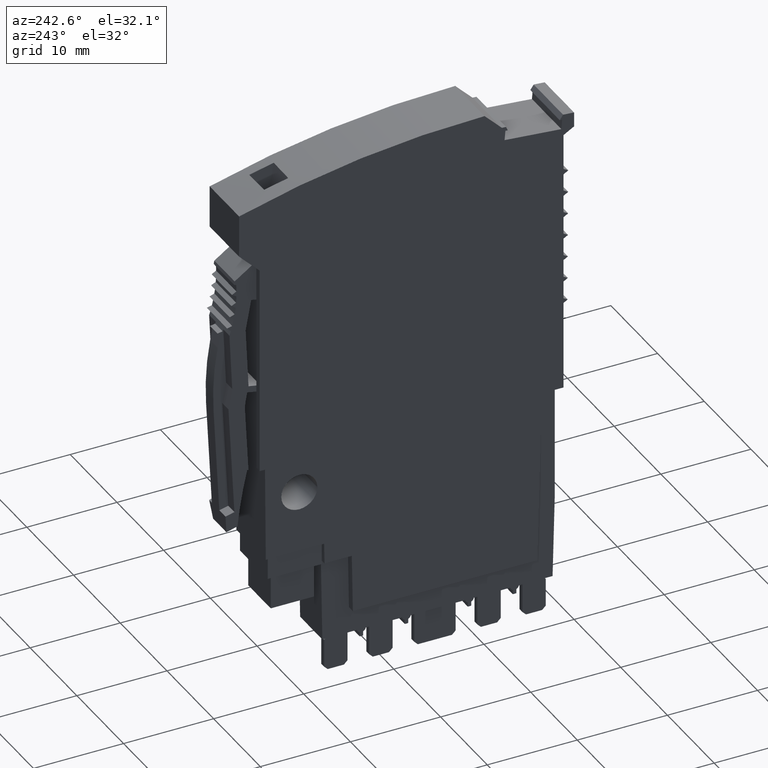
[diagram: clean part render]
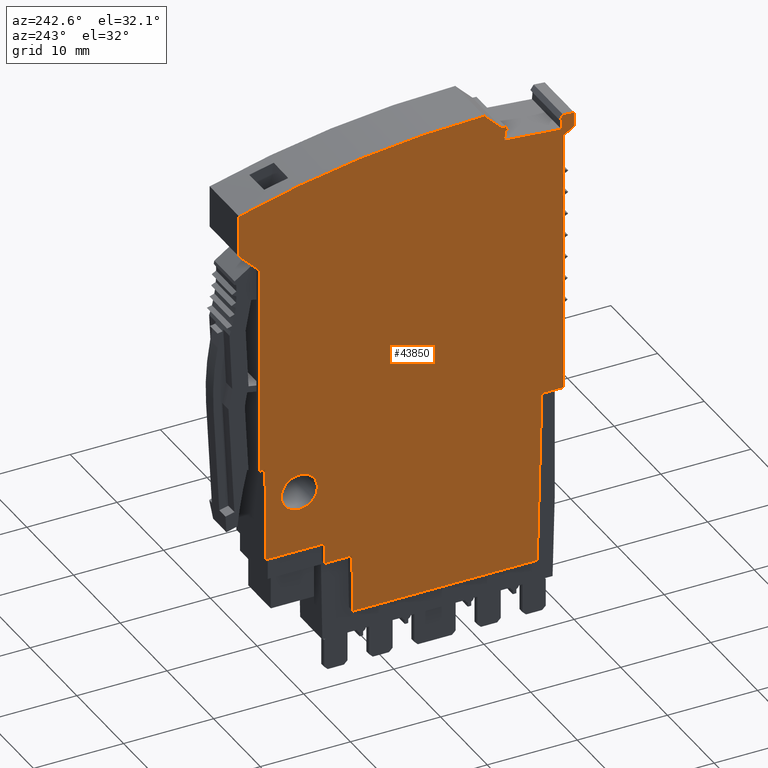
[diagram: same view with one face highlighted and labeled with its STEP entity id]
A machine part, auxiliary view. The second image highlights one B-rep face of the part: STEP entity #43850.
In plain terms, the highlighted planar face has unit normal (-1, -0, -0).
Its self-contained STEP definition (entity closure, byte-faithful):
#1250=CARTESIAN_POINT('',(-29.8115513123655,58.3109668611338,
6.43475243119942E-8));
#1260=VERTEX_POINT('',#1250);
#1290=CARTESIAN_POINT('',(7.105427357601E-15,58.3109707920224,
6.43475288192308E-8));
#1300=DIRECTION('',(-0.999999999999991,-1.31857899599019E-7,
-1.49766621791332E-16));
#1310=VECTOR('',#1300,1.);
#1320=LINE('',#1290,#1310);
#1330=CARTESIAN_POINT('',(-32.2143310897266,58.3109665443083,
6.43475239948271E-8));
#1340=VERTEX_POINT('',#1330);
#1350=EDGE_CURVE('',#1260,#1340,#1320,.T.);
#5100=CARTESIAN_POINT('',(7.105427357601E-15,91.1521046578122,
1.00588494603149E-7));
#5110=DIRECTION('',(0.99638774568797,0.0849203170204037,
9.3711573223576E-11));
#5120=VECTOR('',#5110,1.);
#5130=LINE('',#5100,#5120);
#5140=CARTESIAN_POINT('',(-31.9800707902202,88.4265013356182,
9.75807270378227E-8));
#5150=VERTEX_POINT('',#5140);
#5160=CARTESIAN_POINT('',(-25.6779182987438,88.9636223407723,
9.81734527352729E-8));
#5170=VERTEX_POINT('',#5160);
#5180=EDGE_CURVE('',#5150,#5170,#5130,.T.);
#10710=CARTESIAN_POINT('',(3.78649011320283,88.5895615312616,
9.77606678426478E-8));
#10720=VERTEX_POINT('',#10710);
#10880=CARTESIAN_POINT('',(-23.4620154295483,92.4008095002112,
1.01966469749358E-7));
#10890=VERTEX_POINT('',#10880);
#10920=CARTESIAN_POINT('',(-23.5582147547322,-7.59914422822727,
-8.38583771173296E-9));
#10930=DIRECTION('',(4.25831752161686E-18,1.10352358519E-9,-1.));
#10940=DIRECTION('',(1.,0.,4.25831752161686E-18));
#10950=AXIS2_PLACEMENT_3D('',#10920,#10930,#10940);
#10960=CIRCLE('',#10950,100.);
#10970=EDGE_CURVE('',#10890,#10720,#10960,.T.);
#12600=CARTESIAN_POINT('',(7.105427357601E-15,69.0631084573226,
7.62127663270218E-8));
#12610=DIRECTION('',(-0.866025254858396,0.500000257947384,
5.51762108225162E-10));
#12620=VECTOR('',#12610,1.);
#12630=LINE('',#12600,#12620);
#12640=CARTESIAN_POINT('',(-32.2143223474418,87.6620689298492,
9.67371577285985E-8));
#12650=VERTEX_POINT('',#12640);
#12660=CARTESIAN_POINT('',(-33.3900136670533,88.3408550966202,
9.74862156045238E-8));
#12670=VERTEX_POINT('',#12660);
#12680=EDGE_CURVE('',#12650,#12670,#12630,.T.);
#13910=CARTESIAN_POINT('',(-32.0709798358291,89.4931560796784,
9.87578057050994E-8));
#13920=VERTEX_POINT('',#13910);
#13950=CARTESIAN_POINT('',(-24.443640761928,-7.105427357601E-15,
-2.83106871279415E-15));
#13960=DIRECTION('',(0.0849203170203965,-0.99638774568797,
-1.09953738475221E-9));
#13970=VECTOR('',#13960,1.);
#13980=LINE('',#13950,#13970);
#13990=EDGE_CURVE('',#13920,#5150,#13980,.T.);
#14600=CARTESIAN_POINT('',(-5.69398692253148,45.4986344994977,
5.02088135150241E-8));
#14610=VERTEX_POINT('',#14600);
#14760=CARTESIAN_POINT('',(-5.65384003677915,47.798634957508,
5.27469182549744E-8));
#14770=VERTEX_POINT('',#14760);
#14800=CARTESIAN_POINT('',(-5.65383997885012,47.798634957508,
5.27469182637352E-8));
#14810=DIRECTION('',(-0.0174525057061626,-0.999847693423642,
-1.10335551136512E-9));
#14820=VECTOR('',#14810,1.);
#14830=LINE('',#14800,#14820);
#14840=EDGE_CURVE('',#14770,#14610,#14830,.T.);
#15780=CARTESIAN_POINT('',(-33.3900399795549,-7.105427357601E-15,
-2.86576318231369E-15));
#15790=DIRECTION('',(2.97852014774502E-7,0.999999999999956,
1.10352358518997E-9));
#15800=VECTOR('',#15790,1.);
#15810=LINE('',#15780,#15800);
#15820=CARTESIAN_POINT('',(-33.3900131857319,89.956829913696,
9.92694805916394E-8));
#15830=VERTEX_POINT('',#15820);
#15840=EDGE_CURVE('',#12670,#15830,#15810,.T.);
#17550=CARTESIAN_POINT('',(-6.59696852790766,-259.016138606738,
-2.85830420651556E-7));
#17560=DIRECTION('',(4.25831752161686E-18,1.10352358519E-9,-1.));
#17570=DIRECTION('',(1.,0.,4.25831752161686E-18));
#17580=AXIS2_PLACEMENT_3D('',#17550,#17560,#17570);
#17590=CIRCLE('',#17580,350.);
#17600=CARTESIAN_POINT('',(-32.1707224971671,90.0483011574978,
9.9370422953738E-8));
#17610=VERTEX_POINT('',#17600);
#17620=EDGE_CURVE('',#15830,#17610,#17590,.T.);
#19580=CARTESIAN_POINT('',(-2.89964321690514,54.6030367051887,
6.02557360881995E-8));
#19590=DIRECTION('',(-4.25831525547475E-18,-1.10352358519E-9,1.));
#19600=DIRECTION('',(-1.,-3.5527136788005E-15,-4.25831917597809E-18));
#19610=AXIS2_PLACEMENT_3D('',#19580,#19590,#19600);
#19620=CIRCLE('',#19610,2.);
#19630=CARTESIAN_POINT('',(-2.89964341547315,52.6030367051887,
5.80486889195792E-8));
#19640=VERTEX_POINT('',#19630);
#19650=CARTESIAN_POINT('',(-0.89964321690515,54.6030367051887,
6.02557360967161E-8));
#19660=VERTEX_POINT('',#19650);
#19670=EDGE_CURVE('',#19640,#19660,#19620,.T.);
#19900=CARTESIAN_POINT('',(-4.89964321690515,54.6030367051887,
6.02557360796828E-8));
#19910=VERTEX_POINT('',#19900);
#19940=EDGE_CURVE('',#19910,#19640,#19620,.T.);
#26380=CARTESIAN_POINT('',(-26.0398510780883,90.0071782426212,
9.93250416559252E-8));
#26390=VERTEX_POINT('',#26380);
#26440=CARTESIAN_POINT('',(-68.2570120786558,-7.105427357601E-15,
-3.01841884819964E-15));
#26450=DIRECTION('',(0.424650721006602,0.905357258295626,
9.99083094033182E-10));
#26460=VECTOR('',#26450,1.);
#26470=LINE('',#26440,#26460);
#26480=CARTESIAN_POINT('',(-25.829789102938,90.455031323957,
9.98192580953239E-8));
#26490=VERTEX_POINT('',#26480);
#26500=EDGE_CURVE('',#26390,#26490,#26470,.T.);
#26880=CARTESIAN_POINT('',(7.105427357601E-15,45.4986339341759,
5.02088129128442E-8));
#26890=DIRECTION('',(-0.999999999999995,9.92840029634401E-8,
1.05303923478598E-16));
#26900=VECTOR('',#26890,1.);
#26910=LINE('',#26880,#26900);
#26920=CARTESIAN_POINT('',(-8.72394622879454,45.4986348003242,
5.02088138340907E-8));
#26930=VERTEX_POINT('',#26920);
#26940=EDGE_CURVE('',#14610,#26930,#26910,.T.);
#28860=CARTESIAN_POINT('',(-25.3835324039076,90.4793048796299,
9.98460440733129E-8));
#28870=VERTEX_POINT('',#28860);
#28900=CARTESIAN_POINT('',(7.105427357601E-15,115.862674088246,
1.27857190772296E-7));
#28910=DIRECTION('',(0.707109054248481,0.707104508117308,
7.80306486092286E-10));
#28920=VECTOR('',#28910,1.);
#28930=LINE('',#28900,#28920);
#28940=EDGE_CURVE('',#28870,#10890,#28930,.T.);
#29360=CARTESIAN_POINT('',(0.91543323909314,58.3109681535331,
6.43475259232239E-8));
#29370=VERTEX_POINT('',#29360);
#29520=CARTESIAN_POINT('',(1.50276141855806,58.3109681826893,
6.43475259463959E-8));
#29530=VERTEX_POINT('',#29520);
#29560=CARTESIAN_POINT('',(1.50276141855805,58.3109681826892,
6.43475259465287E-8));
#29570=DIRECTION('',(-0.999999999999999,-4.96421852708345E-8,
-5.90396489026492E-17));
#29580=VECTOR('',#29570,1.);
#29590=LINE('',#29560,#29580);
#29600=EDGE_CURVE('',#29530,#29370,#29590,.T.);
#31520=CARTESIAN_POINT('',(-28.2846249075164,-7.105427357601E-15,
-2.84494650060196E-15));
#31530=DIRECTION('',(0.0261769483078733,-0.999657324975557,
-1.10314543437517E-9));
#31540=VECTOR('',#31530,1.);
#31550=LINE('',#31520,#31540);
#31560=CARTESIAN_POINT('',(-29.3070028735518,39.0430393421184,
4.3084911901866E-8));
#31570=VERTEX_POINT('',#31560);
#31580=EDGE_CURVE('',#1260,#31570,#31550,.T.);
#32450=CARTESIAN_POINT('',(-6.59696852790766,-259.016138606738,
-2.85830420651556E-7));
#32460=DIRECTION('',(-4.25831752161686E-18,-1.10352358519E-9,1.));
#32470=DIRECTION('',(1.,0.,4.25831752161686E-18));
#32480=AXIS2_PLACEMENT_3D('',#32450,#32460,#32470);
#32490=CIRCLE('',#32480,350.);
#32500=EDGE_CURVE('',#28870,#26490,#32490,.T.);
#32760=CARTESIAN_POINT('',(-18.0957104231878,-7.105427357601E-15,
-2.80331313717852E-15));
#32770=DIRECTION('',(-0.0849203170204144,0.996387745687969,
1.09953738475221E-9));
#32780=VECTOR('',#32770,1.);
#32790=LINE('',#32760,#32780);
#32800=CARTESIAN_POINT('',(-25.7688273458872,90.0302771028372,
9.93505320300988E-8));
#32810=VERTEX_POINT('',#32800);
#32820=EDGE_CURVE('',#5170,#32810,#32790,.T.);
#34350=CARTESIAN_POINT('',(-8.83662906666783,39.0430393421184,
4.30849119726467E-8));
#34360=VERTEX_POINT('',#34350);
#34390=CARTESIAN_POINT('',(7.105427357601E-15,39.0430393421184,
4.30849120269805E-8));
#34400=DIRECTION('',(1.,0.,4.25831746991807E-18));
#34410=VECTOR('',#34400,1.);
#34420=LINE('',#34390,#34410);
#34430=EDGE_CURVE('',#31570,#34360,#34420,.T.);
#35650=CARTESIAN_POINT('',(-31.7999560166451,89.5162549473078,
9.87832958504636E-8));
#35660=VERTEX_POINT('',#35650);
#35690=CARTESIAN_POINT('',(7.105427357601E-15,92.2265074146378,
1.01774123385801E-7));
#35700=DIRECTION('',(-0.99638774568797,-0.0849203170203965,
-9.37115732235761E-11));
#35710=VECTOR('',#35700,1.);
#35720=LINE('',#35690,#35710);
#35730=EDGE_CURVE('',#35660,#13920,#35720,.T.);
#40200=CARTESIAN_POINT('',(3.79238029727583,83.9196447158487,
9.26073076181141E-8));
#40210=VERTEX_POINT('',#40200);
#40310=CARTESIAN_POINT('',(3.89822846850633,-7.105427357601E-15,
-2.70616862252382E-15));
#40320=DIRECTION('',(0.00126130284980064,-0.999999204557244,
-1.10352270745774E-9));
#40330=VECTOR('',#40320,1.);
#40340=LINE('',#40310,#40330);
#40350=EDGE_CURVE('',#10720,#40210,#40340,.T.);
#40950=CARTESIAN_POINT('',(-32.2143484577651,-7.105427357601E-15,
-2.85882428840978E-15));
#40960=DIRECTION('',(2.97852008862565E-7,0.999999999999956,
1.10352358518997E-9));
#40970=VECTOR('',#40960,1.);
#40980=LINE('',#40950,#40970);
#40990=EDGE_CURVE('',#1340,#12650,#40980,.T.);
#41670=CARTESIAN_POINT('',(7.105427357601E-15,92.2265074327737,
1.01774123406617E-7));
#41680=DIRECTION('',(0.996387745687969,0.0849203170204144,
9.37115801624699E-11));
#41690=VECTOR('',#41680,1.);
#41700=LINE('',#41670,#41690);
#41710=EDGE_CURVE('',#26390,#32810,#41700,.T.);
#41960=CARTESIAN_POINT('',(30.5811420170622,-7.105427357601E-15,
-2.5951463200613E-15));
#41970=DIRECTION('',(0.571737024681002,-0.820436941275145,
-9.053715277485E-10));
#41980=VECTOR('',#41970,1.);
#41990=LINE('',#41960,#41980);
#42000=EDGE_CURVE('',#17610,#35660,#41990,.T.);
#43030=CARTESIAN_POINT('',(0.82369244772057,47.7986343143926,
5.2746917593877E-8));
#43040=VERTEX_POINT('',#43030);
#43070=CARTESIAN_POINT('',(0.823692447720568,47.7986343143927,
5.27469175837236E-8));
#43080=DIRECTION('',(-0.999999999999995,9.92840019874856E-8,
1.0530391813657E-16));
#43090=VECTOR('',#43080,1.);
#43100=LINE('',#43070,#43090);
#43110=EDGE_CURVE('',#43040,#14770,#43100,.T.);
#43240=CARTESIAN_POINT('',(-55.9378215936621,-6.54999889871899,
-7.22808123077012E-9));
#43250=DIRECTION('',(4.25831746991807E-18,1.10352358519E-9,-1.));
#43260=DIRECTION('',(0.207911690818067,-0.97814760073374,
-1.07940894632134E-9));
#43270=AXIS2_PLACEMENT_3D('',#43240,#43250,#43260);
#43280=PLANE('',#43270);
#43290=EDGE_CURVE('',#19660,#19910,#19620,.T.);
#43300=ORIENTED_EDGE('',*,*,#43290,.T.);
#43310=ORIENTED_EDGE('',*,*,#19670,.T.);
#43320=ORIENTED_EDGE('',*,*,#19940,.T.);
#43330=EDGE_LOOP('',(#43320,#43310,#43300));
#43340=FACE_BOUND('',#43330,.T.);
#43350=ORIENTED_EDGE('',*,*,#34430,.F.);
#43360=CARTESIAN_POINT('',(-9.51812785337945,-7.105427357601E-15,
-2.76861866765898E-15));
#43370=DIRECTION('',(0.0174524064372835,0.999847695156391,
1.10335551285756E-9));
#43380=VECTOR('',#43370,1.);
#43390=LINE('',#43360,#43380);
#43400=EDGE_CURVE('',#34360,#26930,#43390,.T.);
#43410=ORIENTED_EDGE('',*,*,#43400,.F.);
#43420=ORIENTED_EDGE('',*,*,#26940,.T.);
#43430=ORIENTED_EDGE('',*,*,#14840,.T.);
#43440=ORIENTED_EDGE('',*,*,#43110,.T.);
#43450=CARTESIAN_POINT('',(0.915433239093161,58.310968153533,
6.43475259118342E-8));
#43460=DIRECTION('',(-0.00872663477859878,-0.999961922197761,
-1.10348156547432E-9));
#43470=VECTOR('',#43460,1.);
#43480=LINE('',#43450,#43470);
#43490=EDGE_CURVE('',#29370,#43040,#43480,.T.);
#43500=ORIENTED_EDGE('',*,*,#43490,.T.);
#43510=ORIENTED_EDGE('',*,*,#29600,.T.);
#43520=CARTESIAN_POINT('',(1.50276489136722,81.6300293099403,
9.00806598827519E-8));
#43530=DIRECTION('',(-1.48925771504005E-7,-0.999999999999989,
-1.10352358518999E-9));
#43540=VECTOR('',#43530,1.);
#43550=LINE('',#43520,#43540);
#43560=CARTESIAN_POINT('',(1.50276489136722,81.6300293099401,
9.00806629289264E-8));
#43570=VERTEX_POINT('',#43560);
#43580=EDGE_CURVE('',#43570,#29530,#43550,.T.);
#43590=ORIENTED_EDGE('',*,*,#43580,.T.);
#43600=CARTESIAN_POINT('',(-80.1272644185728,-7.105427357601E-15,
-3.06699110552699E-15));
#43610=DIRECTION('',(-0.707106781186547,-0.707106781186548,
-7.80309039605243E-10));
#43620=VECTOR('',#43610,1.);
#43630=LINE('',#43600,#43620);
#43640=EDGE_CURVE('',#40210,#43570,#43630,.T.);
#43650=ORIENTED_EDGE('',*,*,#43640,.T.);
#43660=ORIENTED_EDGE('',*,*,#40350,.T.);
#43670=ORIENTED_EDGE('',*,*,#10970,.T.);
#43680=ORIENTED_EDGE('',*,*,#28940,.T.);
#43690=ORIENTED_EDGE('',*,*,#32500,.F.);
#43700=ORIENTED_EDGE('',*,*,#26500,.T.);
#43710=ORIENTED_EDGE('',*,*,#41710,.F.);
#43720=ORIENTED_EDGE('',*,*,#32820,.T.);
#43730=ORIENTED_EDGE('',*,*,#5180,.T.);
#43740=ORIENTED_EDGE('',*,*,#13990,.T.);
#43750=ORIENTED_EDGE('',*,*,#35730,.T.);
#43760=ORIENTED_EDGE('',*,*,#42000,.T.);
#43770=ORIENTED_EDGE('',*,*,#17620,.T.);
#43780=ORIENTED_EDGE('',*,*,#15840,.T.);
#43790=ORIENTED_EDGE('',*,*,#12680,.T.);
#43800=ORIENTED_EDGE('',*,*,#40990,.T.);
#43810=ORIENTED_EDGE('',*,*,#1350,.T.);
#43820=ORIENTED_EDGE('',*,*,#31580,.F.);
#43830=EDGE_LOOP('',(#43820,#43810,#43800,#43790,#43780,#43770,#43760,
#43750,#43740,#43730,#43720,#43710,#43700,#43690,#43680,#43670,#43660,
#43650,#43590,#43510,#43500,#43440,#43430,#43420,#43410,#43350));
#43840=FACE_OUTER_BOUND('',#43830,.T.);
#43850=ADVANCED_FACE('',(#43340,#43840),#43280,.T.);